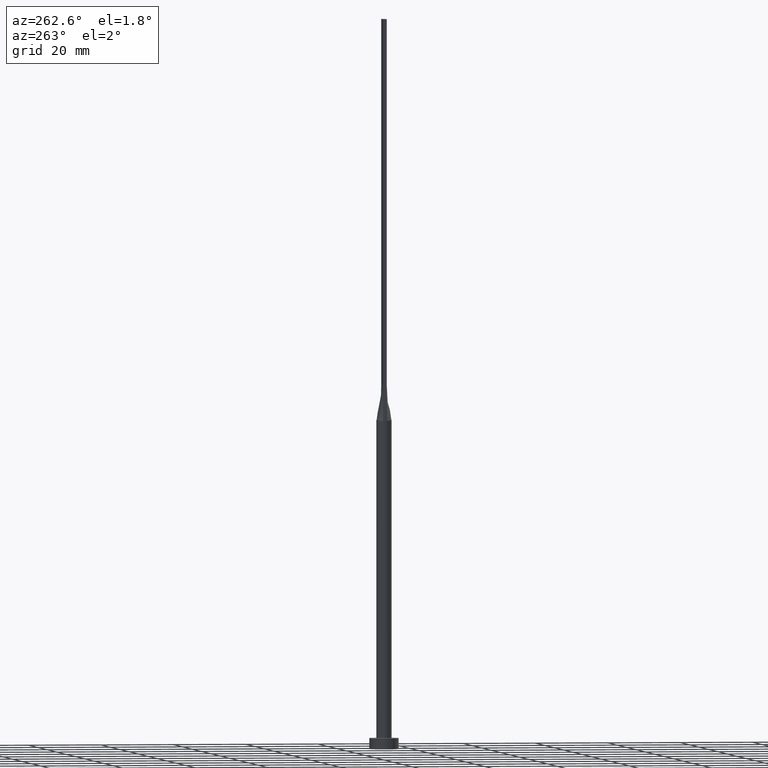
[diagram: clean part render]
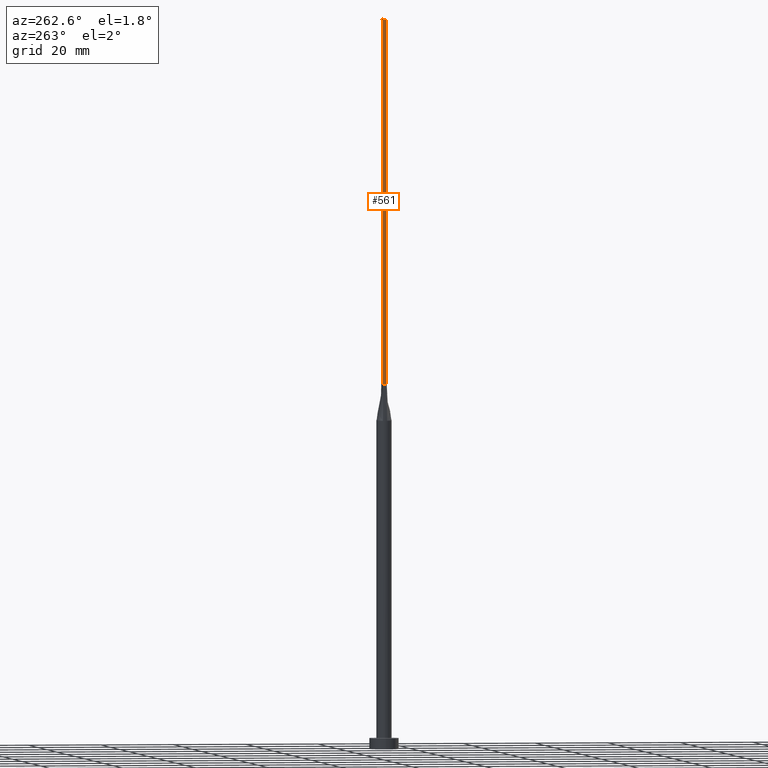
[diagram: same view with one face highlighted and labeled with its STEP entity id]
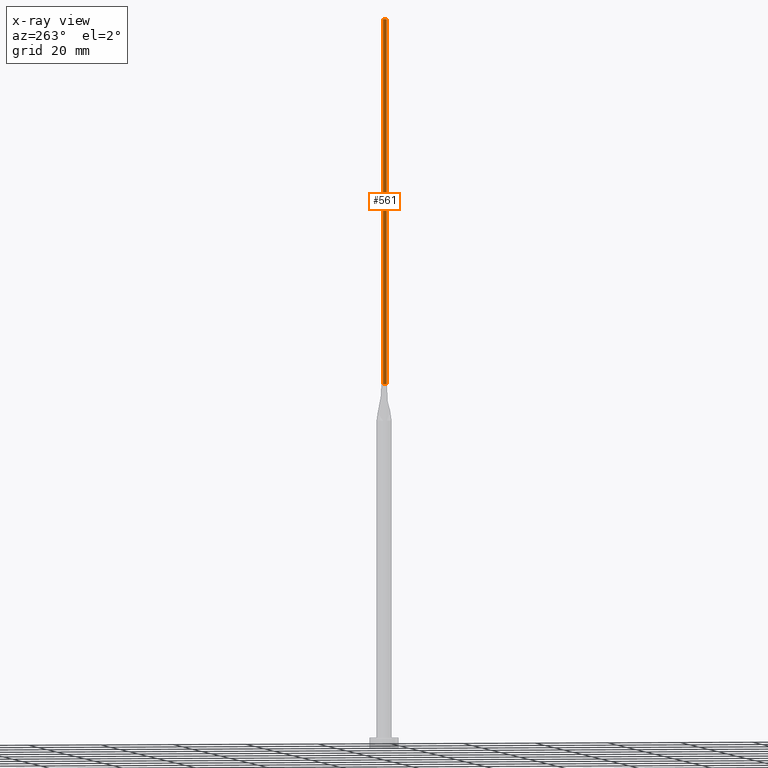
[diagram: x-ray of the same camera — body ghosted, the highlighted face saturated]
A machine part, auxiliary view. The second image highlights one B-rep face of the part: STEP entity #561.
The next image is the same camera in x-ray: the body ghosted, the highlighted face saturated — about 0% of this face is hidden behind the body in this view.
In plain terms, the highlighted planar face has unit normal (1, -0, 0).
Its self-contained STEP definition (entity closure, byte-faithful):
#16 = VERTEX_POINT ( 'NONE', #424 ) ;
#23 = LINE ( 'NONE', #517, #431 ) ;
#67 = LINE ( 'NONE', #244, #309 ) ;
#78 = CARTESIAN_POINT ( 'NONE',  ( -1.899999999999999689, 0.5000000000000002220, 200.0000000000000000 ) ) ;
#88 = LINE ( 'NONE', #316, #443 ) ;
#99 = ORIENTED_EDGE ( 'NONE', *, *, #349, .T. ) ;
#120 = CARTESIAN_POINT ( 'NONE',  ( -1.899999999999999689, 0.5000000000000002220, 99.99999999999998579 ) ) ;
#121 = VECTOR ( 'NONE', #402, 1000.000000000000000 ) ;
#126 = PLANE ( 'NONE',  #156 ) ;
#145 = EDGE_LOOP ( 'NONE', ( #99, #219, #553, #504 ) ) ;
#146 = VERTEX_POINT ( 'NONE', #120 ) ;
#156 = AXIS2_PLACEMENT_3D ( 'NONE', #78, #343, #530 ) ;
#175 = DIRECTION ( 'NONE',  ( -2.168404344971009361E-16, -1.000000000000000000, 0.000000000000000000 ) ) ;
#211 = VERTEX_POINT ( 'NONE', #351 ) ;
#215 = CARTESIAN_POINT ( 'NONE',  ( -1.899999999999999689, 0.5000000000000002220, 200.0000000000000000 ) ) ;
#219 = ORIENTED_EDGE ( 'NONE', *, *, #514, .F. ) ;
#244 = CARTESIAN_POINT ( 'NONE',  ( -1.899999999999999689, 0.5000000000000002220, 200.0000000000000000 ) ) ;
#254 = FACE_OUTER_BOUND ( 'NONE', #145, .T. ) ;
#277 = EDGE_CURVE ( 'NONE', #451, #146, #492, .T. ) ;
#291 = DIRECTION ( 'NONE',  ( -0.000000000000000000, -0.000000000000000000, -1.000000000000000000 ) ) ;
#309 = VECTOR ( 'NONE', #473, 1000.000000000000000 ) ;
#316 = CARTESIAN_POINT ( 'NONE',  ( -1.899999999999999689, 0.5000000000000002220, 99.99999999999998579 ) ) ;
#332 = CARTESIAN_POINT ( 'NONE',  ( -1.899999999999999689, 0.5000000000000002220, 200.0000000000000000 ) ) ;
#343 = DIRECTION ( 'NONE',  ( 1.000000000000000000, -2.168404344971009361E-16, 0.000000000000000000 ) ) ;
#349 = EDGE_CURVE ( 'NONE', #146, #16, #88, .T. ) ;
#351 = CARTESIAN_POINT ( 'NONE',  ( -1.899999999999999911, -0.4999999999999995559, 200.0000000000000000 ) ) ;
#402 = DIRECTION ( 'NONE',  ( -0.000000000000000000, -0.000000000000000000, -1.000000000000000000 ) ) ;
#424 = CARTESIAN_POINT ( 'NONE',  ( -1.899999999999999911, -0.4999999999999995559, 99.99999999999998579 ) ) ;
#431 = VECTOR ( 'NONE', #291, 1000.000000000000000 ) ;
#443 = VECTOR ( 'NONE', #175, 1000.000000000000000 ) ;
#451 = VERTEX_POINT ( 'NONE', #332 ) ;
#473 = DIRECTION ( 'NONE',  ( -2.168404344971009361E-16, -1.000000000000000000, 0.000000000000000000 ) ) ;
#492 = LINE ( 'NONE', #215, #121 ) ;
#503 = EDGE_CURVE ( 'NONE', #451, #211, #67, .T. ) ;
#504 = ORIENTED_EDGE ( 'NONE', *, *, #277, .T. ) ;
#514 = EDGE_CURVE ( 'NONE', #211, #16, #23, .T. ) ;
#517 = CARTESIAN_POINT ( 'NONE',  ( -1.899999999999999911, -0.4999999999999995559, 200.0000000000000000 ) ) ;
#530 = DIRECTION ( 'NONE',  ( 2.168404344971009361E-16, 1.000000000000000000, 0.000000000000000000 ) ) ;
#553 = ORIENTED_EDGE ( 'NONE', *, *, #503, .F. ) ;
#561 = ADVANCED_FACE ( 'NONE', ( #254 ), #126, .F. ) ;